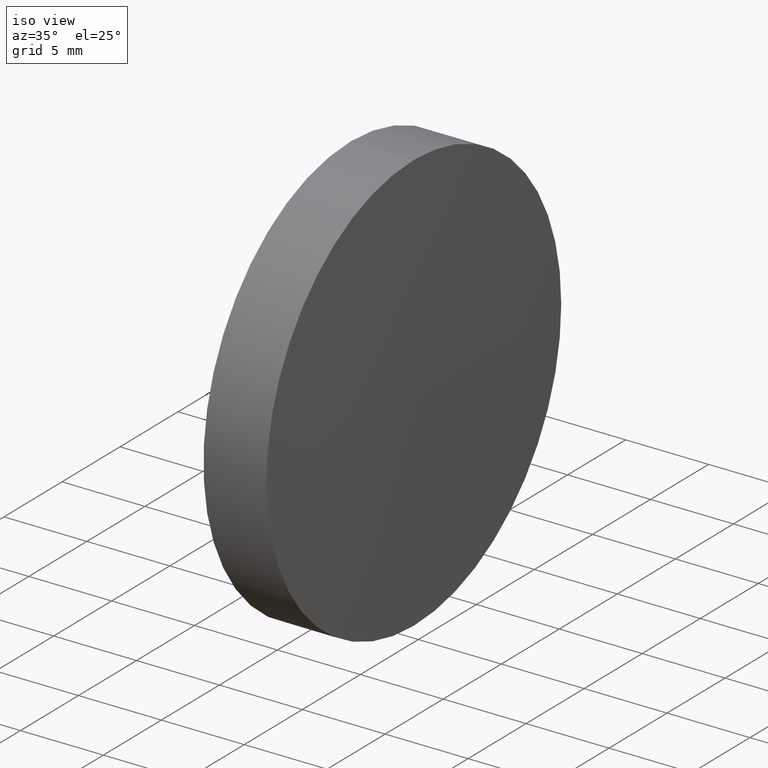
[diagram: clean part render]
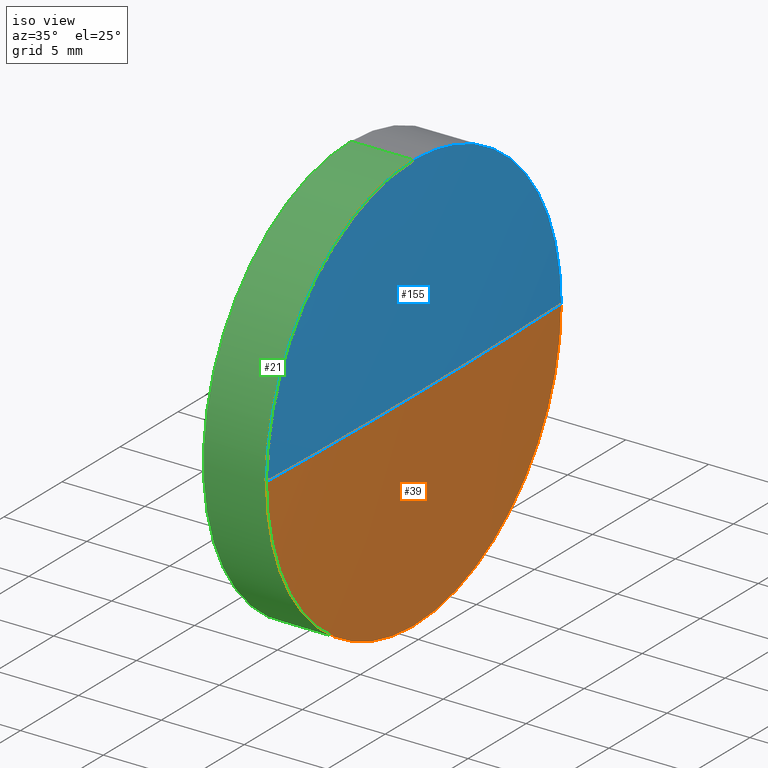
[diagram: same view with three faces highlighted in distinct colors, each labeled with its STEP entity id]
A machine part, iso view with three faces highlighted in distinct colors.
Their STEP definitions:

[orange] entity #39 — the highlighted spherical surface has radius 403.325 mm.
#8 = DIRECTION ( 'NONE',  ( 0.0000000000000000000, 0.0000000000000000000, 1.000000000000000000 ) ) ;
#14 = EDGE_LOOP ( 'NONE', ( #69, #184, #126, #66 ) ) ;
#18 = VERTEX_POINT ( 'NONE', #138 ) ;
#34 = VERTEX_POINT ( 'NONE', #182 ) ;
#39 = ADVANCED_FACE ( 'NONE', ( #152 ), #134, .T. ) ;
#41 = VERTEX_POINT ( 'NONE', #136 ) ;
#42 = EDGE_CURVE ( 'NONE', #34, #165, #146, .T. ) ;
#53 = CARTESIAN_POINT ( 'NONE',  ( -283.5604445238075800, 65.23355492641265100, 0.0000000000000000000 ) ) ;
#62 = CIRCLE ( 'NONE', #89, 12.70000000000000300 ) ;
#66 = ORIENTED_EDGE ( 'NONE', *, *, #163, .F. ) ;
#69 = ORIENTED_EDGE ( 'NONE', *, *, #151, .F. ) ;
#76 = CARTESIAN_POINT ( 'NONE',  ( -283.5604445238075800, 65.23355492641265100, 0.0000000000000000000 ) ) ;
#81 = AXIS2_PLACEMENT_3D ( 'NONE', #110, #183, #168 ) ;
#85 = DIRECTION ( 'NONE',  ( -1.000000000000000000, 0.0000000000000000000, 0.0000000000000000000 ) ) ;
#88 = CARTESIAN_POINT ( 'NONE',  ( -283.5604445238075800, 65.23355492641265100, 0.0000000000000000000 ) ) ;
#89 = AXIS2_PLACEMENT_3D ( 'NONE', #103, #172, #128 ) ;
#93 = CIRCLE ( 'NONE', #100, 403.3250000000088000 ) ;
#100 = AXIS2_PLACEMENT_3D ( 'NONE', #88, #115, #85 ) ;
#103 = CARTESIAN_POINT ( 'NONE',  ( 119.5645554762011900, 65.23355492641219700, 0.0000000000000000000 ) ) ;
#107 = DIRECTION ( 'NONE',  ( 0.0000000000000000000, -1.000000000000000000, 0.0000000000000000000 ) ) ;
#110 = CARTESIAN_POINT ( 'NONE',  ( 119.5645554762011900, 65.23355492641219700, 0.0000000000000000000 ) ) ;
#115 = DIRECTION ( 'NONE',  ( 0.0000000000000000000, 0.0000000000000000000, -1.000000000000000000 ) ) ;
#124 = AXIS2_PLACEMENT_3D ( 'NONE', #53, #8, #107 ) ;
#126 = ORIENTED_EDGE ( 'NONE', *, *, #42, .F. ) ;
#127 = CARTESIAN_POINT ( 'NONE',  ( 119.5645554762012400, 52.53355492641280500, 0.0000000000000000000 ) ) ;
#128 = DIRECTION ( 'NONE',  ( 0.0000000000000000000, 0.0000000000000000000, 1.000000000000000000 ) ) ;
#134 = SPHERICAL_SURFACE ( 'NONE', #124, 403.3250000000087400 ) ;
#136 = CARTESIAN_POINT ( 'NONE',  ( 119.7645554762011800, 65.23355492641262300, 0.0000000000000000000 ) ) ;
#138 = CARTESIAN_POINT ( 'NONE',  ( 119.5645554762012400, 77.93355492641204300, 1.555301434917064100E-015 ) ) ;
#143 = DIRECTION ( 'NONE',  ( 0.0000000000000000000, -1.224646799147353200E-016, 1.000000000000000000 ) ) ;
#146 = CIRCLE ( 'NONE', #81, 12.70000000000000300 ) ;
#150 = AXIS2_PLACEMENT_3D ( 'NONE', #76, #143, #170 ) ;
#151 = EDGE_CURVE ( 'NONE', #41, #18, #175, .T. ) ;
#152 = FACE_OUTER_BOUND ( 'NONE', #14, .T. ) ;
#163 = EDGE_CURVE ( 'NONE', #18, #34, #62, .T. ) ;
#165 = VERTEX_POINT ( 'NONE', #127 ) ;
#167 = EDGE_CURVE ( 'NONE', #41, #165, #93, .T. ) ;
#168 = DIRECTION ( 'NONE',  ( 0.0000000000000000000, 0.0000000000000000000, 1.000000000000000000 ) ) ;
#170 = DIRECTION ( 'NONE',  ( 0.0000000000000000000, -1.000000000000000000, -1.224646799147353500E-016 ) ) ;
#172 = DIRECTION ( 'NONE',  ( -1.000000000000000000, -0.0000000000000000000, -0.0000000000000000000 ) ) ;
#175 = CIRCLE ( 'NONE', #150, 403.3250000000087400 ) ;
#182 = CARTESIAN_POINT ( 'NONE',  ( 119.5645554762011900, 65.23355492641219700, -12.70000000000000300 ) ) ;
#183 = DIRECTION ( 'NONE',  ( -1.000000000000000000, -0.0000000000000000000, -0.0000000000000000000 ) ) ;
#184 = ORIENTED_EDGE ( 'NONE', *, *, #167, .T. ) ;

[blue] entity #155 — the highlighted spherical surface has radius 403.325 mm.
#3 = VERTEX_POINT ( 'NONE', #48 ) ;
#7 = EDGE_CURVE ( 'NONE', #165, #3, #10, .T. ) ;
#10 = CIRCLE ( 'NONE', #179, 12.70000000000000300 ) ;
#18 = VERTEX_POINT ( 'NONE', #138 ) ;
#23 = DIRECTION ( 'NONE',  ( 0.0000000000000000000, 0.0000000000000000000, 1.000000000000000000 ) ) ;
#24 = FACE_OUTER_BOUND ( 'NONE', #49, .T. ) ;
#28 = DIRECTION ( 'NONE',  ( 0.0000000000000000000, 0.0000000000000000000, 1.000000000000000000 ) ) ;
#33 = ORIENTED_EDGE ( 'NONE', *, *, #151, .T. ) ;
#41 = VERTEX_POINT ( 'NONE', #136 ) ;
#46 = CARTESIAN_POINT ( 'NONE',  ( 119.5645554762011900, 65.23355492641219700, 0.0000000000000000000 ) ) ;
#48 = CARTESIAN_POINT ( 'NONE',  ( 119.5645554762011900, 65.23355492641219700, 12.70000000000000300 ) ) ;
#49 = EDGE_LOOP ( 'NONE', ( #55, #33, #91, #73 ) ) ;
#55 = ORIENTED_EDGE ( 'NONE', *, *, #167, .F. ) ;
#61 = DIRECTION ( 'NONE',  ( 0.0000000000000000000, -1.000000000000000000, 0.0000000000000000000 ) ) ;
#73 = ORIENTED_EDGE ( 'NONE', *, *, #7, .F. ) ;
#76 = CARTESIAN_POINT ( 'NONE',  ( -283.5604445238075800, 65.23355492641265100, 0.0000000000000000000 ) ) ;
#80 = EDGE_CURVE ( 'NONE', #3, #18, #174, .T. ) ;
#85 = DIRECTION ( 'NONE',  ( -1.000000000000000000, 0.0000000000000000000, 0.0000000000000000000 ) ) ;
#88 = CARTESIAN_POINT ( 'NONE',  ( -283.5604445238075800, 65.23355492641265100, 0.0000000000000000000 ) ) ;
#91 = ORIENTED_EDGE ( 'NONE', *, *, #80, .F. ) ;
#93 = CIRCLE ( 'NONE', #100, 403.3250000000088000 ) ;
#100 = AXIS2_PLACEMENT_3D ( 'NONE', #88, #115, #85 ) ;
#111 = SPHERICAL_SURFACE ( 'NONE', #159, 403.3250000000087400 ) ;
#113 = CARTESIAN_POINT ( 'NONE',  ( 119.5645554762011900, 65.23355492641219700, 0.0000000000000000000 ) ) ;
#115 = DIRECTION ( 'NONE',  ( 0.0000000000000000000, 0.0000000000000000000, -1.000000000000000000 ) ) ;
#127 = CARTESIAN_POINT ( 'NONE',  ( 119.5645554762012400, 52.53355492641280500, 0.0000000000000000000 ) ) ;
#129 = DIRECTION ( 'NONE',  ( -1.000000000000000000, -0.0000000000000000000, -0.0000000000000000000 ) ) ;
#131 = CARTESIAN_POINT ( 'NONE',  ( -283.5604445238075800, 65.23355492641265100, 0.0000000000000000000 ) ) ;
#136 = CARTESIAN_POINT ( 'NONE',  ( 119.7645554762011800, 65.23355492641262300, 0.0000000000000000000 ) ) ;
#137 = AXIS2_PLACEMENT_3D ( 'NONE', #113, #129, #139 ) ;
#138 = CARTESIAN_POINT ( 'NONE',  ( 119.5645554762012400, 77.93355492641204300, 1.555301434917064100E-015 ) ) ;
#139 = DIRECTION ( 'NONE',  ( 0.0000000000000000000, 0.0000000000000000000, 1.000000000000000000 ) ) ;
#143 = DIRECTION ( 'NONE',  ( 0.0000000000000000000, -1.224646799147353200E-016, 1.000000000000000000 ) ) ;
#150 = AXIS2_PLACEMENT_3D ( 'NONE', #76, #143, #170 ) ;
#151 = EDGE_CURVE ( 'NONE', #41, #18, #175, .T. ) ;
#155 = ADVANCED_FACE ( 'NONE', ( #24 ), #111, .T. ) ;
#156 = DIRECTION ( 'NONE',  ( -1.000000000000000000, -0.0000000000000000000, -0.0000000000000000000 ) ) ;
#159 = AXIS2_PLACEMENT_3D ( 'NONE', #131, #28, #61 ) ;
#165 = VERTEX_POINT ( 'NONE', #127 ) ;
#167 = EDGE_CURVE ( 'NONE', #41, #165, #93, .T. ) ;
#170 = DIRECTION ( 'NONE',  ( 0.0000000000000000000, -1.000000000000000000, -1.224646799147353500E-016 ) ) ;
#174 = CIRCLE ( 'NONE', #137, 12.70000000000000300 ) ;
#175 = CIRCLE ( 'NONE', #150, 403.3250000000087400 ) ;
#179 = AXIS2_PLACEMENT_3D ( 'NONE', #46, #156, #23 ) ;

[green] entity #21 — the highlighted cylindrical surface (partial cylindrical patch) has radius 12.7 mm, axis along (-1, -0, -0).
#2 = ORIENTED_EDGE ( 'NONE', *, *, #42, .T. ) ;
#3 = VERTEX_POINT ( 'NONE', #48 ) ;
#6 = ORIENTED_EDGE ( 'NONE', *, *, #71, .F. ) ;
#7 = EDGE_CURVE ( 'NONE', #165, #3, #10, .T. ) ;
#10 = CIRCLE ( 'NONE', #179, 12.70000000000000300 ) ;
#12 = ORIENTED_EDGE ( 'NONE', *, *, #96, .F. ) ;
#19 = AXIS2_PLACEMENT_3D ( 'NONE', #123, #135, #166 ) ;
#20 = FACE_OUTER_BOUND ( 'NONE', #29, .T. ) ;
#21 = ADVANCED_FACE ( 'NONE', ( #20 ), #38, .T. ) ;
#23 = DIRECTION ( 'NONE',  ( 0.0000000000000000000, 0.0000000000000000000, 1.000000000000000000 ) ) ;
#29 = EDGE_LOOP ( 'NONE', ( #12, #2, #95, #104, #6 ) ) ;
#31 = DIRECTION ( 'NONE',  ( -1.000000000000000000, -0.0000000000000000000, -0.0000000000000000000 ) ) ;
#34 = VERTEX_POINT ( 'NONE', #182 ) ;
#38 = CYLINDRICAL_SURFACE ( 'NONE', #19, 12.70000000000000300 ) ;
#42 = EDGE_CURVE ( 'NONE', #34, #165, #146, .T. ) ;
#44 = DIRECTION ( 'NONE',  ( -1.000000000000000000, -0.0000000000000000000, -0.0000000000000000000 ) ) ;
#45 = EDGE_CURVE ( 'NONE', #3, #154, #54, .T. ) ;
#46 = CARTESIAN_POINT ( 'NONE',  ( 119.5645554762011900, 65.23355492641219700, 0.0000000000000000000 ) ) ;
#48 = CARTESIAN_POINT ( 'NONE',  ( 119.5645554762011900, 65.23355492641219700, 12.70000000000000300 ) ) ;
#54 = LINE ( 'NONE', #108, #65 ) ;
#59 = CARTESIAN_POINT ( 'NONE',  ( 115.7645554762012000, 65.23355492641219700, 0.0000000000000000000 ) ) ;
#65 = VECTOR ( 'NONE', #44, 1000.000000000000000 ) ;
#71 = EDGE_CURVE ( 'NONE', #133, #154, #117, .T. ) ;
#72 = LINE ( 'NONE', #77, #109 ) ;
#77 = CARTESIAN_POINT ( 'NONE',  ( 110.1653732284884500, 65.23355492641219700, -12.70000000000000300 ) ) ;
#81 = AXIS2_PLACEMENT_3D ( 'NONE', #110, #183, #168 ) ;
#86 = DIRECTION ( 'NONE',  ( 0.0000000000000000000, 0.0000000000000000000, 1.000000000000000000 ) ) ;
#95 = ORIENTED_EDGE ( 'NONE', *, *, #7, .T. ) ;
#96 = EDGE_CURVE ( 'NONE', #34, #133, #72, .T. ) ;
#104 = ORIENTED_EDGE ( 'NONE', *, *, #45, .T. ) ;
#108 = CARTESIAN_POINT ( 'NONE',  ( 110.1653732284884500, 65.23355492641219700, 12.70000000000000300 ) ) ;
#109 = VECTOR ( 'NONE', #173, 1000.000000000000000 ) ;
#110 = CARTESIAN_POINT ( 'NONE',  ( 119.5645554762011900, 65.23355492641219700, 0.0000000000000000000 ) ) ;
#117 = CIRCLE ( 'NONE', #148, 12.70000000000000300 ) ;
#123 = CARTESIAN_POINT ( 'NONE',  ( 110.1653732284884500, 65.23355492641219700, 0.0000000000000000000 ) ) ;
#127 = CARTESIAN_POINT ( 'NONE',  ( 119.5645554762012400, 52.53355492641280500, 0.0000000000000000000 ) ) ;
#133 = VERTEX_POINT ( 'NONE', #140 ) ;
#135 = DIRECTION ( 'NONE',  ( -1.000000000000000000, -0.0000000000000000000, -0.0000000000000000000 ) ) ;
#140 = CARTESIAN_POINT ( 'NONE',  ( 115.7645554762012000, 65.23355492641219700, -12.70000000000000300 ) ) ;
#146 = CIRCLE ( 'NONE', #81, 12.70000000000000300 ) ;
#148 = AXIS2_PLACEMENT_3D ( 'NONE', #59, #31, #86 ) ;
#154 = VERTEX_POINT ( 'NONE', #171 ) ;
#156 = DIRECTION ( 'NONE',  ( -1.000000000000000000, -0.0000000000000000000, -0.0000000000000000000 ) ) ;
#165 = VERTEX_POINT ( 'NONE', #127 ) ;
#166 = DIRECTION ( 'NONE',  ( 0.0000000000000000000, 0.0000000000000000000, 1.000000000000000000 ) ) ;
#168 = DIRECTION ( 'NONE',  ( 0.0000000000000000000, 0.0000000000000000000, 1.000000000000000000 ) ) ;
#171 = CARTESIAN_POINT ( 'NONE',  ( 115.7645554762012000, 65.23355492641219700, 12.70000000000000300 ) ) ;
#173 = DIRECTION ( 'NONE',  ( -1.000000000000000000, -0.0000000000000000000, -0.0000000000000000000 ) ) ;
#179 = AXIS2_PLACEMENT_3D ( 'NONE', #46, #156, #23 ) ;
#182 = CARTESIAN_POINT ( 'NONE',  ( 119.5645554762011900, 65.23355492641219700, -12.70000000000000300 ) ) ;
#183 = DIRECTION ( 'NONE',  ( -1.000000000000000000, -0.0000000000000000000, -0.0000000000000000000 ) ) ;